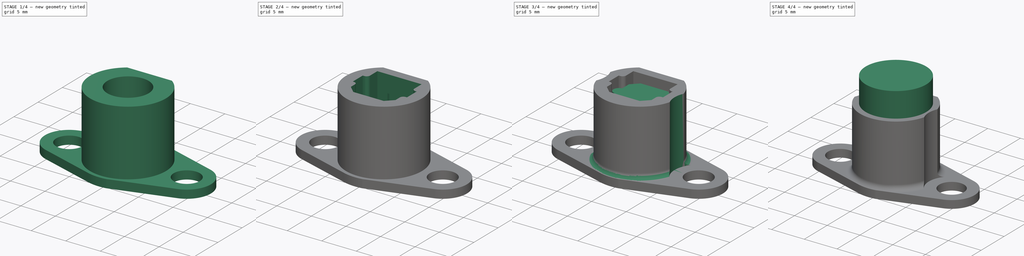
[diagram: build sequence overview — one tinted view per stage of 4, left to right]
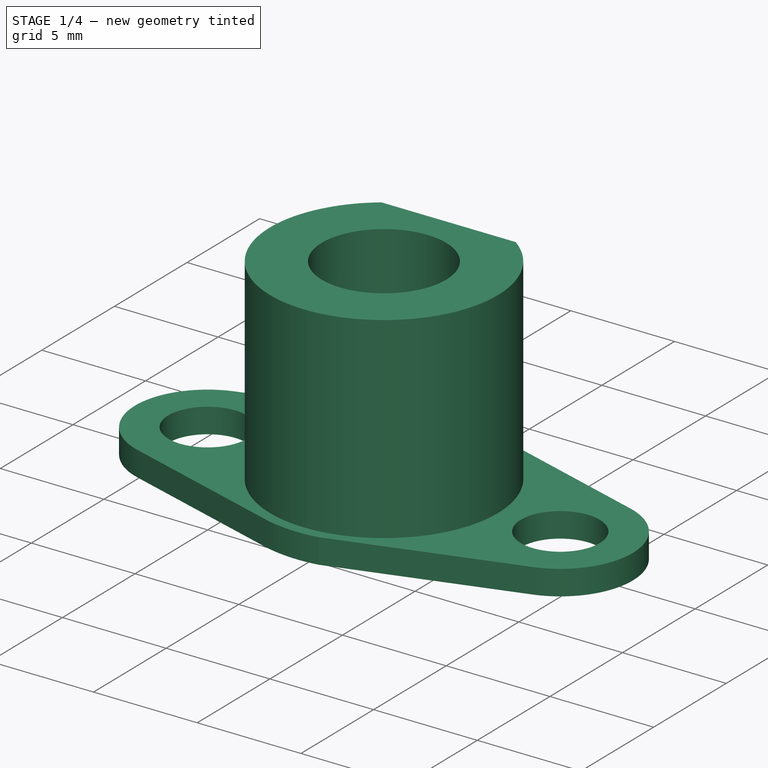
[diagram: stage 1 of 4 — iso view after this stage's code; geometry added in this stage tinted green]
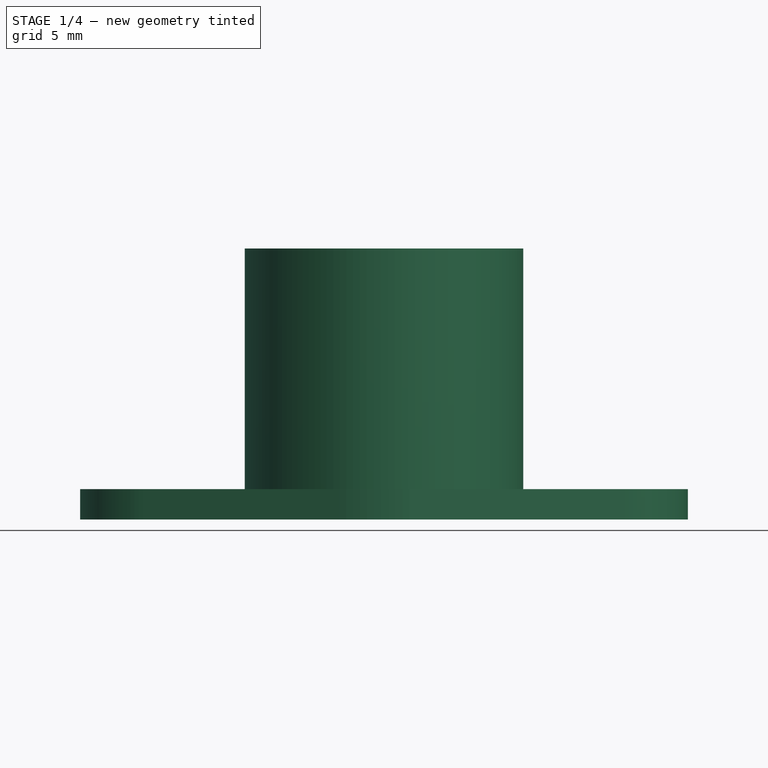
[diagram: stage 1 of 4 — front view after this stage's code; geometry added in this stage tinted green]
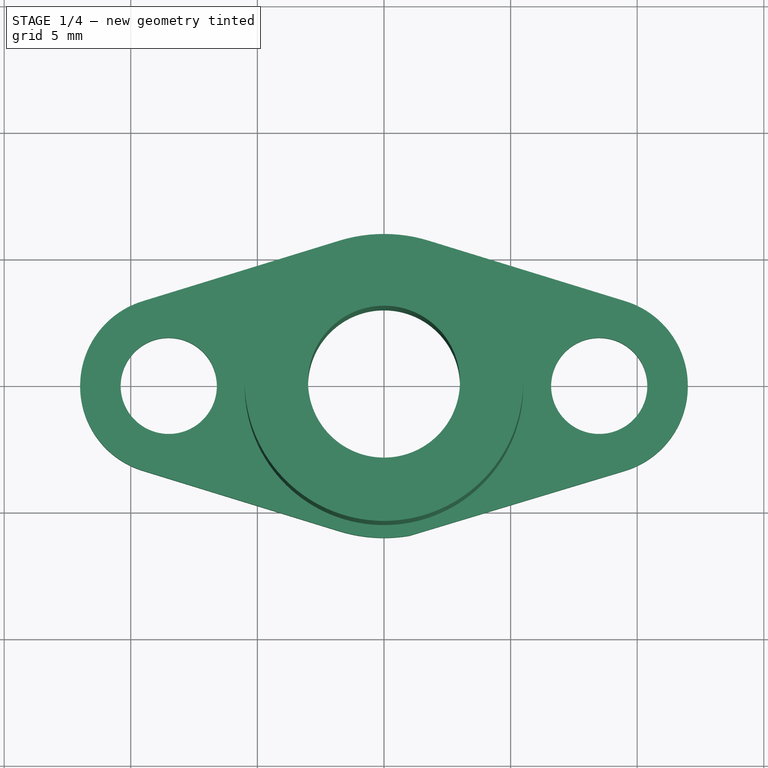
[diagram: stage 1 of 4 — top view after this stage's code; geometry added in this stage tinted green]
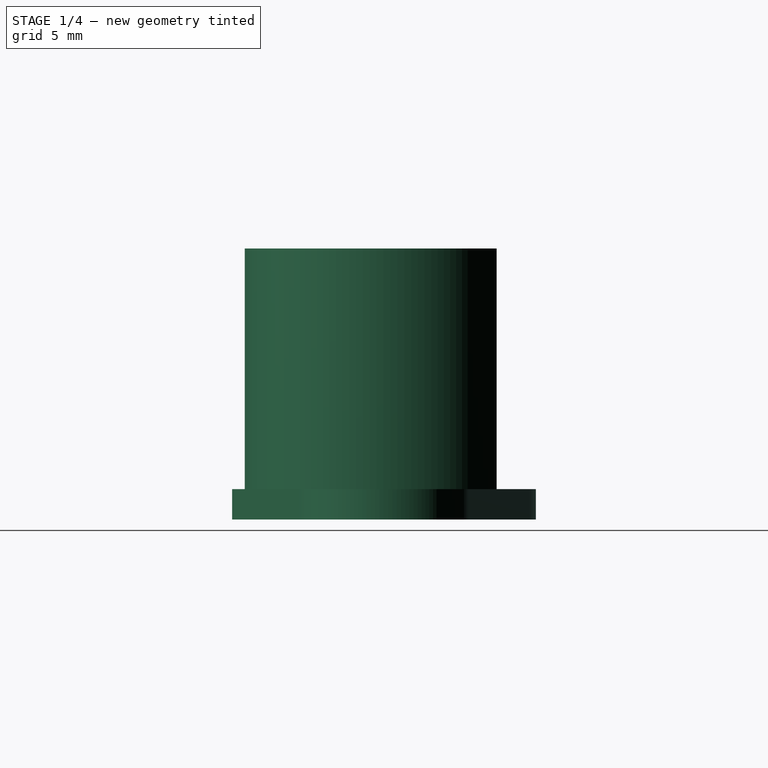
[diagram: stage 1 of 4 — right view after this stage's code; geometry added in this stage tinted green]
FCSTD DOCUMENT  (FreeCAD 0.18.4R)
Label: toslink_launcher
License: All rights reserved
LicenseURL: http://en.wikipedia.org/wiki/All_rights_reserved
objects: Sketcher::SketchObject×9, PartDesign::Pad×5, PartDesign::Pocket×4, PartDesign::Body×2, Spreadsheet::Sheet×1, PartDesign::Fillet×1, App::Part×1
note: 30 computed .brp shape members not serialized (recipe doc carries the construction recipe); baked Part::Feature solids carry a one-line shape summary decoded from their .brp

FEATURE [PartDesign::Body] Body  label="TOSLink Dummy"
  Group = -> [Sketch,Pad,Sketch001,Pad001,Sketch002,Pad002]
  Origin = -> Origin001
  Placement = pos=(0,0,22) rot=(0,0,1;0rad)
  Tip = -> Pad002
FEATURE [Sketcher::SketchObject] Sketch003  label="Base plate sketch 3"
  MapMode = 5
  Support = -> [XY_Plane002]
  expr: Constraints.hole_rad = Spreadsheet.washer_d / 2
  expr: Constraints.screw_hole_rad = Spreadsheet.screw_d / 2 + Spreadsheet.fudge
  expr: Constraints[52] = 3mm
  expr: Constraints[24] = Constraints.screw_hole_rad
  expr: Constraints[6] = 17
  expr: Constraints[2] = Constraints.hole_rad
  sketch-geometry (20):
    g0: Circle [constr] CenterX=0 CenterY=0 CenterZ=0 NormalX=0 NormalY=0 NormalZ=1 AngleXU=0 Radius=6
    g1: Circle [constr] CenterX=8.5 CenterY=0 CenterZ=0 NormalX=0 NormalY=0 NormalZ=1 AngleXU=0 Radius=3.5
    g2: Circle [constr] CenterX=-8.5 CenterY=0 CenterZ=0 NormalX=0 NormalY=0 NormalZ=1 AngleXU=0 Radius=3.5
    g3: LineSegment StartX=-9.5294 StartY=3.3452 StartZ=0 EndX=-1.76471 EndY=5.73461 EndZ=0
    g4: LineSegment StartX=1.76471 StartY=5.73462 StartZ=0 EndX=9.5294 EndY=3.3452 EndZ=0
    g5: LineSegment StartX=-9.5294 StartY=-3.3452 StartZ=0 EndX=-1.76471 EndY=-5.73462 EndZ=0
    g6: LineSegment StartX=9.5101 StartY=-3.35107 StartZ=0 EndX=1.0015 EndY=-5.91583 EndZ=0
    g7: ArcOfCircle CenterX=-8.5 CenterY=0 CenterZ=0 NormalX=0 NormalY=0 NormalZ=1 AngleXU=0 Radius=3.5 StartAngle=1.86932 EndAngle=4.41386
    g8: Circle CenterX=-8.5 CenterY=0 CenterZ=0 NormalX=0 NormalY=0 NormalZ=1 AngleXU=0 Radius=1.9
    g9: Circle CenterX=8.5 CenterY=0 CenterZ=0 NormalX=0 NormalY=0 NormalZ=1 AngleXU=0 Radius=1.9
    g10: LineSegment [constr] StartX=-3 StartY=3 StartZ=0 EndX=3 EndY=3 EndZ=0
    g11: LineSegment [constr] StartX=3 StartY=3 StartZ=0 EndX=3 EndY=-3 EndZ=0
    g12: LineSegment [constr] StartX=3 StartY=-3 StartZ=0 EndX=-3 EndY=-3 EndZ=0
    g13: LineSegment [constr] StartX=-3 StartY=-3 StartZ=0 EndX=-3 EndY=3 EndZ=0
    g14: ArcOfCircle [constr] CenterX=0 CenterY=0 CenterZ=0 NormalX=0 NormalY=0 NormalZ=1 AngleXU=0 Radius=6 StartAngle=1.40335 EndAngle=1.86933
    g15: ArcOfCircle CenterX=0 CenterY=0 CenterZ=0 NormalX=0 NormalY=0 NormalZ=1 AngleXU=0 Radius=6 StartAngle=1.27226 EndAngle=1.86933
    g16: ArcOfCircle CenterX=0 CenterY=0 CenterZ=0 NormalX=0 NormalY=0 NormalZ=1 AngleXU=0 Radius=6 StartAngle=4.41386 EndAngle=4.88009
    g17: ArcOfCircle CenterX=8.5 CenterY=0 CenterZ=0 NormalX=0 NormalY=0 NormalZ=1 AngleXU=0 Radius=3.5 StartAngle=5.00515 EndAngle=7.55545
    g18: LineSegment [constr] StartX=-3.66186 StartY=5.15081 StartZ=0 EndX=-3 EndY=3 EndZ=0
    g19: Circle CenterX=0 CenterY=0 CenterZ=0 NormalX=0 NormalY=0 NormalZ=1 AngleXU=0 Radius=3
  constraints (53):
    c: Coincident(g0,g-1)
    c: Radius(g0) = 6  'body_rad'
    c: Radius(g1) = 3.5
    c: Radius(g2) = 3.5  'hole_rad'
    c: PointOnObject(g2,g-1)
    c: Symmetric(g2,g1,g-1)
    c: Distance(g2,g1) = 17
    c: PointOnObject(g3,g2)
    c: PointOnObject(g3,g0)
    c: Tangent(g3,g0)
    c: Tangent(g2,g3)
    c: Tangent(g4,g1)
    c: PointOnObject(g5,g0)
    c: Tangent(g5,g0)
    c: PointOnObject(g6,g1)
    c: Tangent(g6,g1)
    c: Tangent(g4,g0)
    c: Tangent(g2,g5)
    c: Coincident(g7,g2)
    c: Coincident(g7,g3)
    c: Coincident(g7,g5)
    c: Coincident(g8,g7)
    c: Radius(g8) = 1.9  'screw_hole_rad'
    c: Coincident(g9,g1)
    c: Radius(g9) = 1.9
    c: Coincident(g10,g11)
    c: Coincident(g11,g12)
    c: Coincident(g12,g13)
    c: Coincident(g13,g10)
    c: Horizontal(g10)
    c: Horizontal(g12)
    c: Vertical(g11)
    c: Vertical(g13)
    c: Symmetric(g11,g10,g-1)
    c: Distance(g13) = 6
    c: Distance(g12) = 6
    c: Coincident(g14,g-1)
    c: Coincident(g14,g3)
    c: Coincident(g15,g-1)
    c: Coincident(g15,g3)
    c: Coincident(g15,g4)
    c: Coincident(g16,g15)
    c: Coincident(g16,g5)
    c: Coincident(g16,g6)
    c: Coincident(g17,g9)
    c: Coincident(g17,g4)
    c: Coincident(g17,g6)
    c: PointOnObject(g18,g3)
    c: Coincident(g18,g10)
    c: Angle(g3,g18) = 1.5708
    c: Distance(g18) = 2.25034
    c: Coincident(g19,g15)
    c: Radius(g19) = 3
FEATURE [PartDesign::Pad] Pad003  label="Base plate"
  Length = 1.2
  Length2 = 100
  Profile = -> Sketch003
  Type = 0
  expr: Length = Spreadsheet.base_thickness
FEATURE [Sketcher::SketchObject] Sketch004  label="Upright body 4"
  ExternalGeometry = -> [Sketch003]
  MapMode = 5
  Placement = pos=(0,0,1.2) rot=(0,0,1;0rad)
  Support = -> [Pad003]
  sketch-geometry (14):
    g0: Circle [constr] CenterX=0 CenterY=0 CenterZ=0 NormalX=0 NormalY=0 NormalZ=1 AngleXU=0 Radius=5.5
    g1: LineSegment [constr] StartX=3.23282 StartY=4.44959 StartZ=0 EndX=-3.23282 EndY=4.44959 EndZ=0
    g2: LineSegment [constr] StartX=0 StartY=0 StartZ=0 EndX=3.23282 EndY=4.44959 EndZ=0
    g3: LineSegment [constr] StartX=0 StartY=0 StartZ=0 EndX=-3.23282 EndY=4.44959 EndZ=0
    g4: LineSegment [constr] StartX=-3 StartY=3 StartZ=0 EndX=3 EndY=3 EndZ=0
    g5: LineSegment [constr] StartX=3 StartY=3 StartZ=0 EndX=3 EndY=-3 EndZ=0
    g6: LineSegment [constr] StartX=3 StartY=-3 StartZ=0 EndX=-3 EndY=-3 EndZ=0
    g7: LineSegment [constr] StartX=-3 StartY=-3 StartZ=0 EndX=-3 EndY=3 EndZ=0
    g8: Circle [constr] CenterX=8.5 CenterY=0 CenterZ=0 NormalX=0 NormalY=0 NormalZ=1 AngleXU=0 Radius=3.5
    g9: ArcOfCircle [constr] CenterX=0 CenterY=0 CenterZ=0 NormalX=0 NormalY=0 NormalZ=1 AngleXU=0 Radius=5.5 StartAngle=2.19911 EndAngle=7.29024
    g10: ArcOfCircle CenterX=0 CenterY=0 CenterZ=0 NormalX=0 NormalY=0 NormalZ=1 AngleXU=0 Radius=5.5 StartAngle=2.19911 EndAngle=7.22566
    g11: LineSegment StartX=3.23282 StartY=4.44959 StartZ=0 EndX=-3.23282 EndY=4.44959 EndZ=0
    g12: Circle CenterX=0 CenterY=0 CenterZ=0 NormalX=0 NormalY=0 NormalZ=1 AngleXU=0 Radius=3
    g13: GeomPoint X=-0.786716 Y=-2.89501 Z=0
  constraints (33):
    c: Coincident(g0,g-1)
    c: Radius(g0) = 5.5
    c: PointOnObject(g1,g0)
    c: Coincident(g2,g-1)
    c: Coincident(g2,g1)
    c: Coincident(g3,g-1)
    c: Coincident(g3,g1)
    c: Angle(g2,g3) = 1.25664
    c: DistanceY(g1,g-1) = -4.44959
    c: Coincident(g4,g5)
    c: Coincident(g5,g6)
    c: Coincident(g6,g7)
    c: Coincident(g7,g4)
    c: Horizontal(g4)
    c: Horizontal(g6)
    c: Vertical(g5)
    c: Vertical(g7)
    c: Symmetric(g4,g5,g-1)
    c: Distance(g7) = 6
    c: Distance(g6) = 6
    c: Horizontal(g1)
    c: Coincident(g8,g-3)
    c: Radius(g8) = 3.5
    c: Coincident(g9,g-1)
    c: Coincident(g9,g1)
    c: Coincident(g10,g-1)
    c: Coincident(g10,g1)
    c: Coincident(g10,g1)
    c: Coincident(g11,g10)
    c: Coincident(g11,g10)
    c: Coincident(g12,g10)
    c: PointOnObject(g13,g-4)
    c: PointOnObject(g13,g12)
FEATURE [PartDesign::Pad] Pad004  label="Upright"
  BaseFeature = -> Pad003
  Length = 9.5
  Length2 = 100
  Profile = -> Sketch004
  Type = 0
  expr: Length = Spreadsheet.upright_h
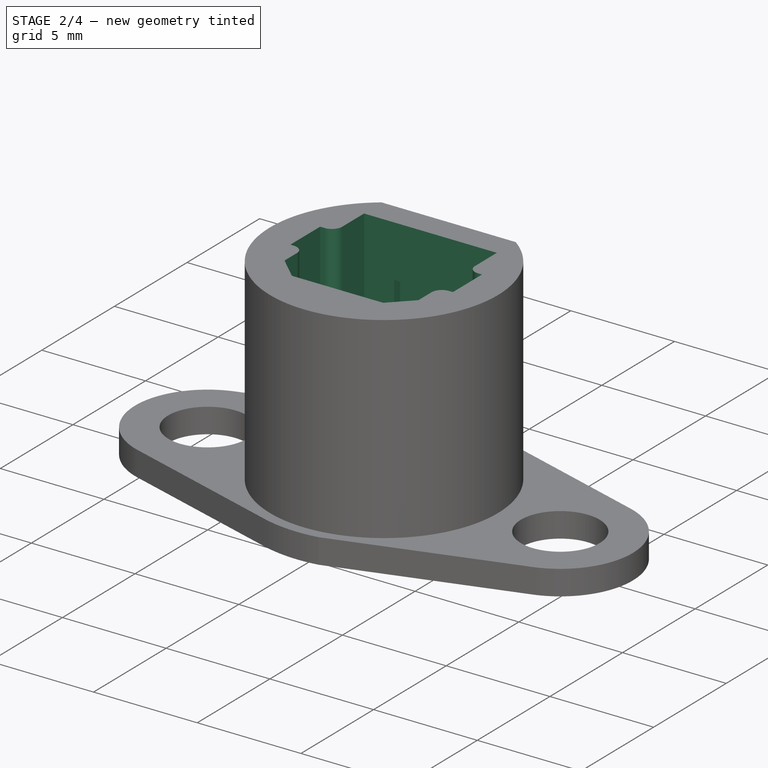
[diagram: stage 2 of 4 — iso view after this stage's code; geometry added in this stage tinted green]
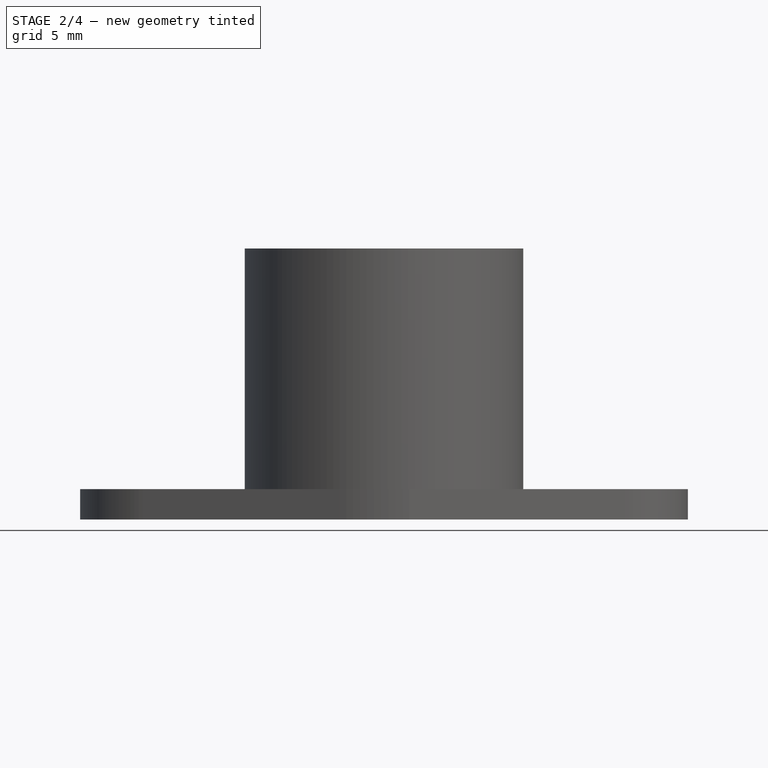
[diagram: stage 2 of 4 — front view after this stage's code; geometry added in this stage tinted green]
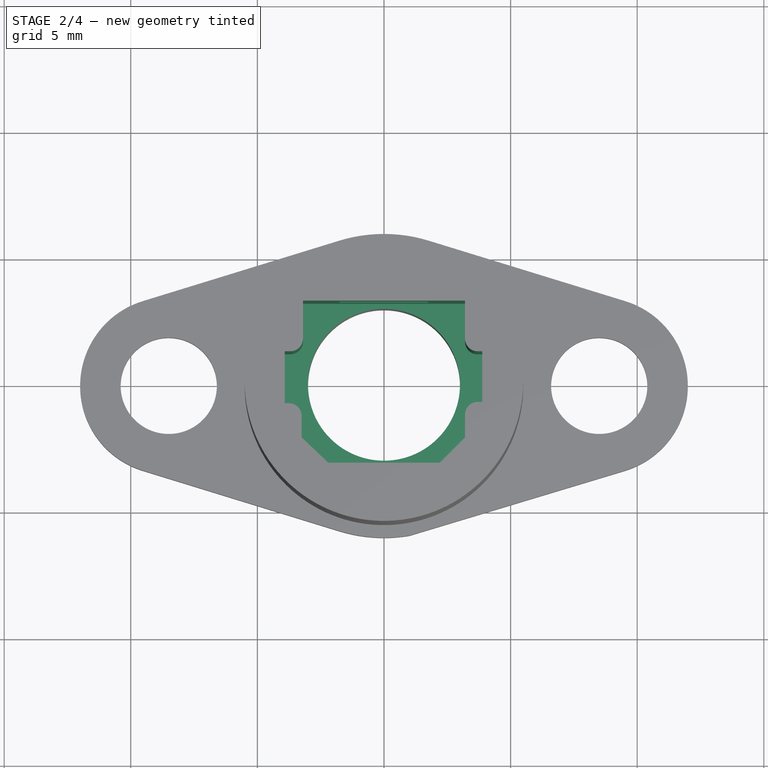
[diagram: stage 2 of 4 — top view after this stage's code; geometry added in this stage tinted green]
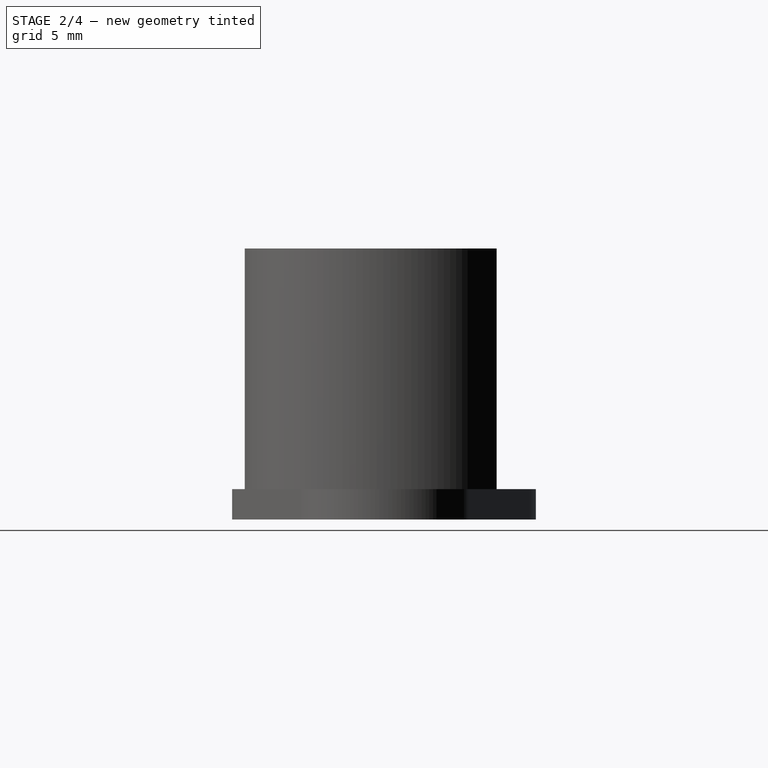
[diagram: stage 2 of 4 — right view after this stage's code; geometry added in this stage tinted green]
FEATURE [Sketcher::SketchObject] Sketch005  label="Toslink cutout 5"
  AttachmentOffset = pos=(0,0,0) rot=(0,0,1;3.14159rad)
  MapMode = 5
  Placement = pos=(0,0,10.7) rot=(0,0,1;3.14159rad)
  Support = -> [Pad004]
  expr: Constraints[43] = 2mm
  expr: Constraints[13] = 7.4mm + 2 * Spreadsheet.fudge
  expr: Constraints[27] = Constraints.filet_rad
  expr: Constraints[41] = Constraints.filet_rad
  expr: Constraints.vheight = 6mm + 2 * Spreadsheet.fudge
  expr: Constraints[2] = 4mm + 2 * Spreadsheet.fudge
  expr: Constraints.hwidth = 6mm + 2 * Spreadsheet.fudge
  expr: Constraints[8] = Constraints.vheight / 2
  expr: Constraints[40] = Constraints.filet_rad
  sketch-geometry (23):
    g0: LineSegment StartX=3.2 StartY=-3.2 StartZ=0 EndX=-3.2 EndY=-3.2 EndZ=0
    g1: LineSegment StartX=-3.2 StartY=2.2 StartZ=0 EndX=-2.2 EndY=3.2 EndZ=0
    g2: LineSegment StartX=-2.2 StartY=3.2 StartZ=0 EndX=2.2 EndY=3.2 EndZ=0
    g3: LineSegment StartX=2.2 StartY=3.2 StartZ=0 EndX=3.25416 EndY=2.2 EndZ=0
    g4: GeomPoint X=-3.25 Y=-0.325 Z=0
    g5: LineSegment StartX=3.91712 StartY=-1.2 StartZ=0 EndX=3.91712 EndY=0.85 EndZ=0
    g6: LineSegment StartX=-3.88288 StartY=0.8 StartZ=0 EndX=-3.88288 EndY=-1.2 EndZ=0
    g7: GeomPoint X=-3.25 Y=-3.25 Z=0
    g8: LineSegment StartX=-3.2 StartY=-3.2 StartZ=0 EndX=-3.2 EndY=-1.7 EndZ=0
    g9: LineSegment StartX=-3.88288 StartY=-1.2 StartZ=0 EndX=-3.7 EndY=-1.2 EndZ=0
    g10: ArcOfCircle CenterX=-3.7 CenterY=-1.7 CenterZ=0 NormalX=0 NormalY=0 NormalZ=1 AngleXU=0 Radius=0.5 StartAngle=1e-16 EndAngle=1.5708
    g11: LineSegment StartX=3.2 StartY=-3.2 StartZ=0 EndX=3.2 EndY=-1.7 EndZ=0
    g12: LineSegment StartX=3.91712 StartY=-1.2 StartZ=0 EndX=3.7 EndY=-1.2 EndZ=0
    g13: ArcOfCircle CenterX=3.7 CenterY=-1.7 CenterZ=0 NormalX=0 NormalY=0 NormalZ=1 AngleXU=0 Radius=0.5 StartAngle=1.5708 EndAngle=3.14159
    g14: LineSegment StartX=-3.88288 StartY=0.8 StartZ=0 EndX=-3.7 EndY=0.8 EndZ=0
    g15: LineSegment StartX=-3.2 StartY=2.2 StartZ=0 EndX=-3.2 EndY=1.3 EndZ=0
    g16: LineSegment StartX=3.25416 StartY=2.2 StartZ=0 EndX=3.25416 EndY=1.35 EndZ=0
    g17: LineSegment StartX=3.91712 StartY=0.85 StartZ=0 EndX=3.75416 EndY=0.85 EndZ=0
    g18: ArcOfCircle CenterX=3.75416 CenterY=1.35 CenterZ=0 NormalX=0 NormalY=0 NormalZ=1 AngleXU=0 Radius=0.5 StartAngle=3.14159 EndAngle=4.71239
    g19: ArcOfCircle CenterX=-3.7 CenterY=1.3 CenterZ=0 NormalX=0 NormalY=0 NormalZ=1 AngleXU=0 Radius=0.5 StartAngle=4.71239 EndAngle=6.28319
    g20: GeomPoint X=2.95176 Y=-2.95456 Z=0
    g21: GeomPoint X=2.99528 Y=1.99747 Z=0
    g22: GeomPoint X=3.25416 Y=1.97974 Z=0
  constraints (49):
    c: Coincident(g2,g3)
    c: Coincident(g1,g2)
    c: Distance(g2) = 4.4
    c: Distance(g0) = 6.4  'hwidth'
    c: Symmetric(g0,g0,g-2)
    c: Symmetric(g1,g2,g-2)
    c: Horizontal(g1,g3)
    c: DistanceY(g0,g1) = 6.4  'vheight'
    c: DistanceY(g0,g-1) = 3.2
    c: DistanceX(g1,g1) = 1
    c: DistanceY(g1,g1) = 1
    c: Vertical(g5)
    c: Vertical(g6)
    c: Distance(g6,g5) = 7.8
    c: Coincident(g8,g0)
    c: Vertical(g8)
    c: Coincident(g9,g6)
    c: Horizontal(g9)
    c: Tangent(g9,g10) = 1.5708
    c: Tangent(g8,g10) = -1.5708
    c: Radius(g10) = 0.5  'filet_rad'
    c: Coincident(g11,g0)
    c: Vertical(g11)
    c: Coincident(g12,g5)
    c: Horizontal(g12)
    c: Tangent(g12,g13) = -1.5708
    c: Tangent(g11,g13) = 1.5708
    c: Radius(g13) = 0.5
    c: Coincident(g14,g6)
    c: Coincident(g15,g1)
    c: Vertical(g15)
    c: Coincident(g16,g3)
    c: Coincident(g17,g5)
    c: Vertical(g16)
    c: Horizontal(g17)
    c: Tangent(g17,g18) = 1.5708
    c: Tangent(g16,g18) = -1.5708
    c: Tangent(g14,g19) = -1.5708
    c: Tangent(g15,g19) = 1.5708
    c: Horizontal(g14)
    c: Radius(g19) = 0.5
    c: Radius(g18) = 0.5
    c: Horizontal(g6,g5)
    c: DistanceY(g0,g6) = 2
    c: DistanceY(g6,g1) = 1.4
    c: DistanceX(g20,g0) = 0.248241
    c: DistanceY(g0,g20) = 0.245443
    c: PointOnObject(g22,g16)
    c: DistanceX(g21,g22) = 0.258878
FEATURE [Sketcher::SketchObject] Sketch006  label="washer boss sketch 6"
  ExternalGeometry = -> [Sketch003]
  MapMode = 5
  Placement = pos=(0,0,1.2) rot=(0,0,1;0rad)
  expr: Constraints.washer_rad = Spreadsheet.washer_d / 2
  expr: Constraints[3] = Constraints.washer_rad
  sketch-geometry (2):
    g0: Circle CenterX=-8.5 CenterY=0 CenterZ=0 NormalX=0 NormalY=0 NormalZ=1 AngleXU=0 Radius=3.5
    g1: Circle CenterX=8.5 CenterY=0 CenterZ=0 NormalX=0 NormalY=0 NormalZ=1 AngleXU=0 Radius=3.5
  constraints (4):
    c: Coincident(g0,g-3)
    c: Radius(g0) = 3.5  'washer_rad'
    c: Coincident(g1,g-4)
    c: Radius(g1) = 3.5
FEATURE [Spreadsheet::Sheet] Spreadsheet
  cells = A1=name; B1=value; C1=notes; A2=fudge; B2(fudge)==0.2mm; C2=Fudge factor for a single layer squeeze-out; A3=led_lens_h; B3(led_lens_h)==0.5mm; C3=How high the LED lens is off the XY plane; A4=flat_to_lens; B4(flat_to_lens)==10mm; C4=Distance from connector flat to end of fiber; A5=base_thickness; B5(base_thickness)==1.2mm; C5=How thick to make the base plate; A6=lens_gap; B6(lens_gap)==0.2mm; C6=How far to put the lens from the LED; A7=upright_h; B7(upright_h)==flat_to_lens + lens_gap + led_lens_h - base_thickness; C7=Computed from above; A8=socket_d; B8(socket_d)==7mm; C8=Socket depth (a little long, to avoid bottoming out); A9=notch_inset; B9(notch_inset)==2.5mm; C9=How far into the socket to put the notches; A10=notch_depth; B10(notch_depth)==0.4mm; C10=How deep to make the notches; A11=screw_d; B11(screw_d)==3.4mm; C11=Diameter of screw holes; A12=washer_d; B12(washer_d)==7mm; C12=Diameter of washer flats
FEATURE [PartDesign::Pocket] Pocket  label="Socket"
  BaseFeature = -> Pad004
  Length = 7
  Length2 = 100
  Profile = -> Sketch005
  Type = 0
  expr: Length = Spreadsheet.socket_d
FEATURE [Sketcher::SketchObject] Sketch007  label="Retaining notch 7"
  ExternalGeometry = -> [Pocket]
  MapMode = 5
  Placement = pos=(-4e-16,-3.2,0) rot=(0,0.707107,0.707107;3.14159rad)
  Support = -> [Pocket]
  expr: Constraints[10] = Spreadsheet.notch_inset + 2mm
  expr: Constraints[9] = Spreadsheet.notch_inset
  sketch-geometry (4):
    g0: LineSegment StartX=1.75 StartY=8.2 StartZ=0 EndX=-1.75 EndY=8.2 EndZ=0
    g1: LineSegment StartX=-1.75 StartY=8.2 StartZ=0 EndX=-1.75 EndY=6.2 EndZ=0
    g2: LineSegment StartX=-1.75 StartY=6.2 StartZ=0 EndX=1.75 EndY=6.2 EndZ=0
    g3: LineSegment StartX=1.75 StartY=6.2 StartZ=0 EndX=1.75 EndY=8.2 EndZ=0
  constraints (11):
    c: Coincident(g0,g1)
    c: Coincident(g1,g2)
    c: Coincident(g2,g3)
    c: Coincident(g3,g0)
    c: Horizontal(g2)
    c: Vertical(g1)
    c: Vertical(g3)
    c: Symmetric(g0,g0,g-2)
    c: Distance(g0) = 3.5
    c: DistanceY(g0,g-3) = 2.5
    c: DistanceY(g1,g-3) = 4.5
FEATURE [PartDesign::Pocket] Pocket001  label="Retaining notch top"
  BaseFeature = -> Pocket
  Length = 0.4
  Length2 = 100
  Profile = -> Sketch007
  Type = 0
  expr: Length = Spreadsheet.notch_depth
FEATURE [Sketcher::SketchObject] Sketch008  label="Retaining notch 8"
  ExternalGeometry = -> [Sketch007]
  MapMode = 5
  Placement = pos=(4e-16,3.2,0) rot=(1,0,0;1.5708rad)
  Support = -> [Pocket001]
  sketch-geometry (4):
    g0: LineSegment StartX=-1.75 StartY=8.2 StartZ=0 EndX=1.75 EndY=8.2 EndZ=0
    g1: LineSegment StartX=1.75 StartY=8.2 StartZ=0 EndX=1.75 EndY=6.2 EndZ=0
    g2: LineSegment StartX=1.75 StartY=6.2 StartZ=0 EndX=-1.75 EndY=6.2 EndZ=0
    g3: LineSegment StartX=-1.75 StartY=6.2 StartZ=0 EndX=-1.75 EndY=8.2 EndZ=0
  constraints (10):
    c: Coincident(g0,g1)
    c: Coincident(g1,g2)
    c: Coincident(g2,g3)
    c: Coincident(g3,g0)
    c: Horizontal(g0)
    c: Horizontal(g2)
    c: Vertical(g1)
    c: Vertical(g3)
    c: Coincident(g0,g-3)
    c: Coincident(g1,g-4)
FEATURE [PartDesign::Pocket] Pocket002  label="Retaining notch bottom"
  BaseFeature = -> Pocket001
  Length = 0.4
  Length2 = 100
  Profile = -> Sketch008
  Type = 0
  expr: Length = Spreadsheet.notch_depth
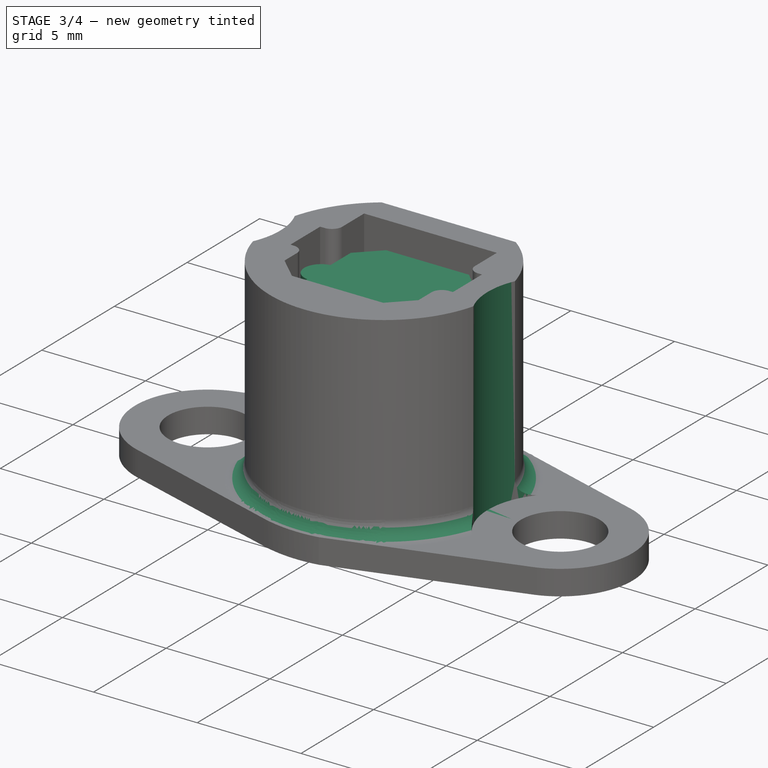
[diagram: stage 3 of 4 — iso view after this stage's code; geometry added in this stage tinted green]
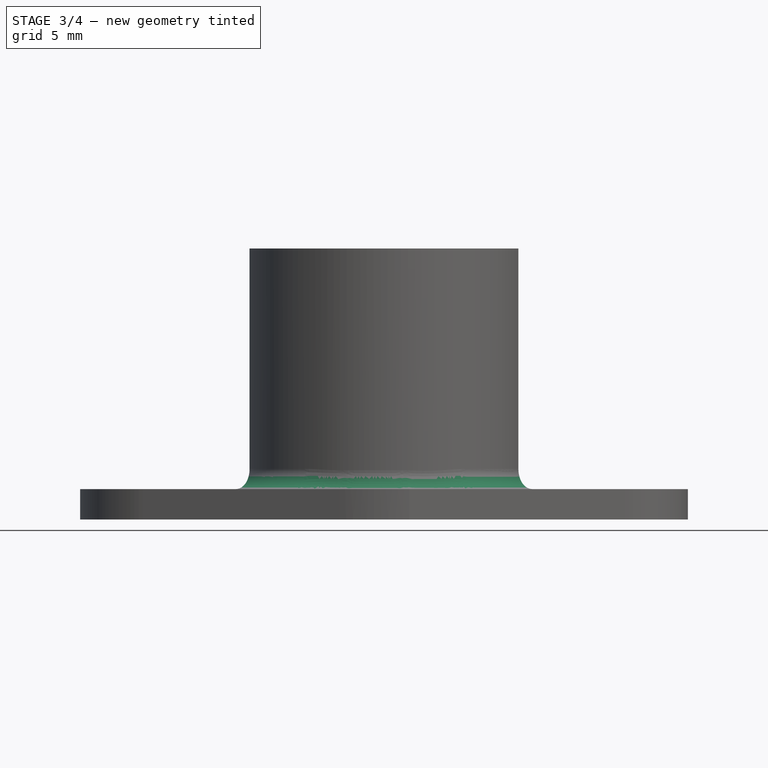
[diagram: stage 3 of 4 — front view after this stage's code; geometry added in this stage tinted green]
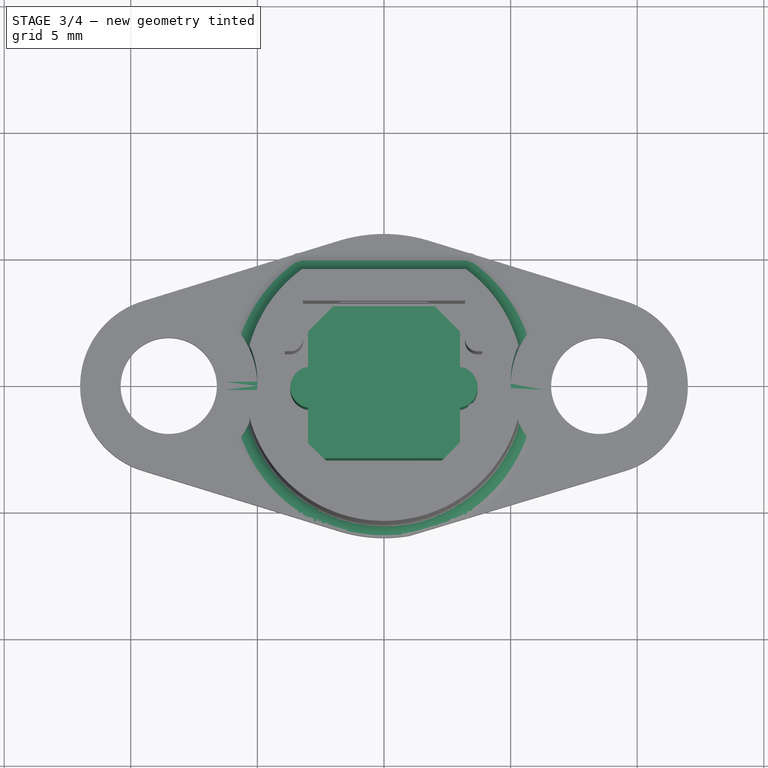
[diagram: stage 3 of 4 — top view after this stage's code; geometry added in this stage tinted green]
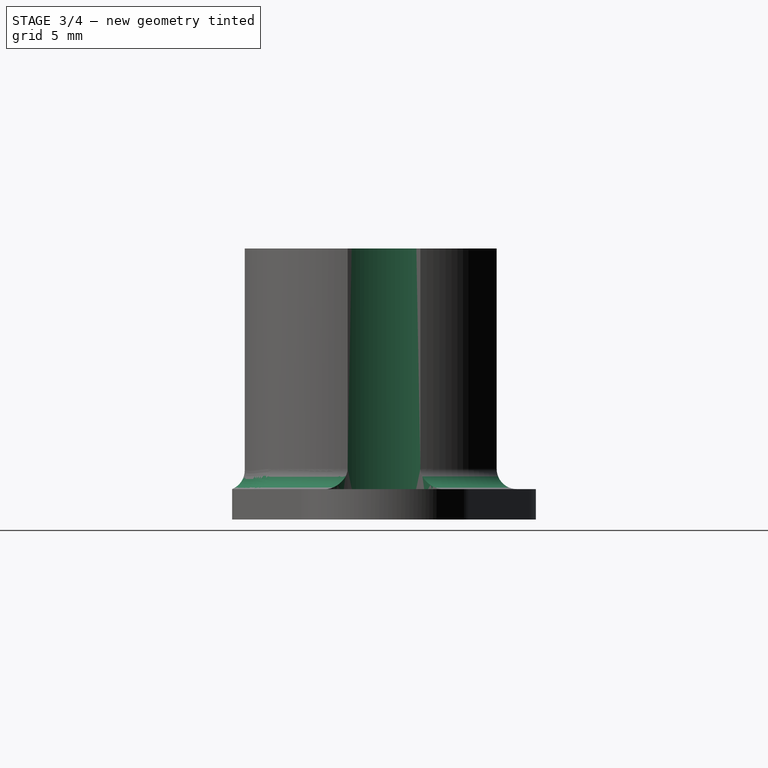
[diagram: stage 3 of 4 — right view after this stage's code; geometry added in this stage tinted green]
FEATURE [Sketcher::SketchObject] Sketch
  AttachmentOffset = pos=(0,0,3) rot=(0,0,1;0rad)
  MapMode = 5
  Placement = pos=(0,0,3) rot=(0,0,1;0rad)
  Support = -> [XY_Plane001]
  sketch-geometry (13):
    g0: LineSegment StartX=-3 StartY=-1 StartZ=0 EndX=-3 EndY=-3 EndZ=0
    g1: LineSegment StartX=-3 StartY=-3 StartZ=0 EndX=3 EndY=-3 EndZ=0
    g2: LineSegment StartX=3 StartY=-3 StartZ=0 EndX=3 EndY=-1 EndZ=0
    g3: LineSegment StartX=-2 StartY=3 StartZ=0 EndX=2 EndY=3 EndZ=0
    g4: LineSegment StartX=2 StartY=3 StartZ=0 EndX=3 EndY=2 EndZ=0
    g5: LineSegment StartX=-2 StartY=3 StartZ=0 EndX=-3 EndY=2 EndZ=0
    g6: LineSegment StartX=-3 StartY=2 StartZ=0 EndX=-3 EndY=0.6 EndZ=0
    g7: LineSegment StartX=3 StartY=2 StartZ=0 EndX=3 EndY=0.6 EndZ=0
    g8: GeomPoint X=2 Y=-3 Z=0
    g9: GeomPoint X=-3.7 Y=-0.2 Z=0
    g10: GeomPoint X=3.7 Y=-0.2 Z=0
    g11: ArcOfCircle CenterX=-2.89286 CenterY=-0.2 CenterZ=0 NormalX=0 NormalY=0 NormalZ=1 AngleXU=0 Radius=0.807143 StartAngle=1.70393 EndAngle=4.57925
    g12: ArcOfCircle CenterX=2.89286 CenterY=-0.2 CenterZ=0 NormalX=0 NormalY=0 NormalZ=1 AngleXU=0 Radius=0.807143 StartAngle=4.84553 EndAngle=7.72085
  constraints (32):
    c: Vertical(g0)
    c: Coincident(g1,g0)
    c: Coincident(g2,g1)
    c: Vertical(g2)
    c: Coincident(g4,g3)
    c: Coincident(g5,g3)
    c: Vertical(g6)
    c: Vertical(g7)
    c: Coincident(g4,g7)
    c: Coincident(g5,g6)
    c: Vertical(g7,g2)
    c: Symmetric(g0,g1,g-2)
    c: Symmetric(g3,g3,g-2)
    c: Distance(g1) = 6
    c: Distance(g3) = 4
    c: PointOnObject(g8,g1)
    c: Symmetric(g3,g8,g-1)
    c: DistanceY(g8,g-1) = 3
    c: DistanceX(g9,g10) = 7.4
    c: Symmetric(g9,g10,g-2)
    c: Distance(g0) = 2
    c: Horizontal(g0,g2)
    c: Distance(g6) = 1.4
    c: Coincident(g11,g6)
    c: Coincident(g11,g0)
    c: PointOnObject(g9,g11)
    c: Coincident(g12,g7)
    c: Coincident(g12,g2)
    c: PointOnObject(g10,g12)
    c: Horizontal(g7,g6)
    c: Horizontal(g4,g5)
    c: DistanceY(g5,g3) = 1
FEATURE [PartDesign::Pad] Pad
  Length = 6.5
  Length2 = 100
  Profile = -> Sketch
  Type = 0
FEATURE [PartDesign::Fillet] Fillet
  Base = -> Pocket002 [Edge24,Edge25]
  BaseFeature = -> Pocket002
  Radius = 0.8
FEATURE [PartDesign::Pocket] Pocket003  label="Washer flats"
  BaseFeature = -> Fillet
  Length = 5
  Length2 = 100
  Profile = -> Sketch006
  Reversed = true
  Type = 1
FEATURE [PartDesign::Body] Body001  label="TOSLink Launcher001"
  Group = -> [Sketch003,Pad003,Sketch004,Pad004,Sketch005,Sketch006,Sketch007,Pocket,Pocket001,Sketch008,Pocket002,Fillet,Pocket003]
  Origin = -> Origin002
  Tip = -> Pocket003
FEATURE [App::Part] Part  label="TOSLink Launcher"
  Group = -> [Body,Body001]
  Origin = -> Origin
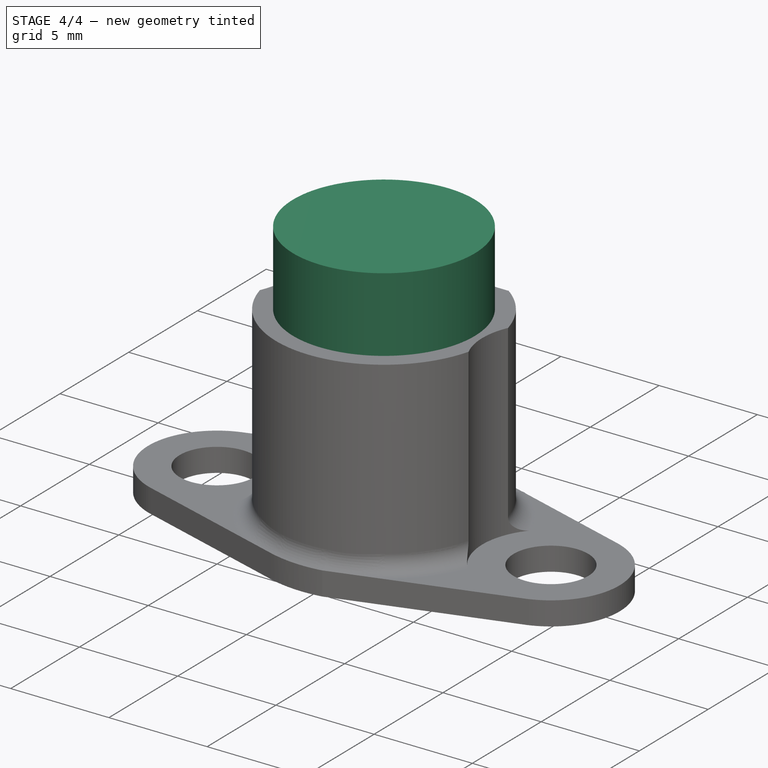
[diagram: stage 4 of 4 — iso view after this stage's code; geometry added in this stage tinted green]
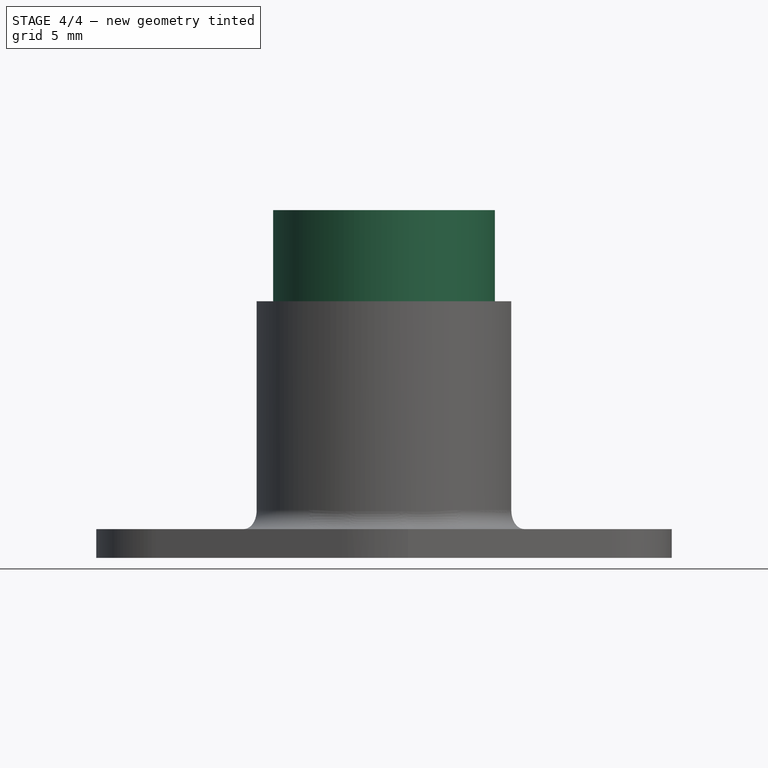
[diagram: stage 4 of 4 — front view after this stage's code; geometry added in this stage tinted green]
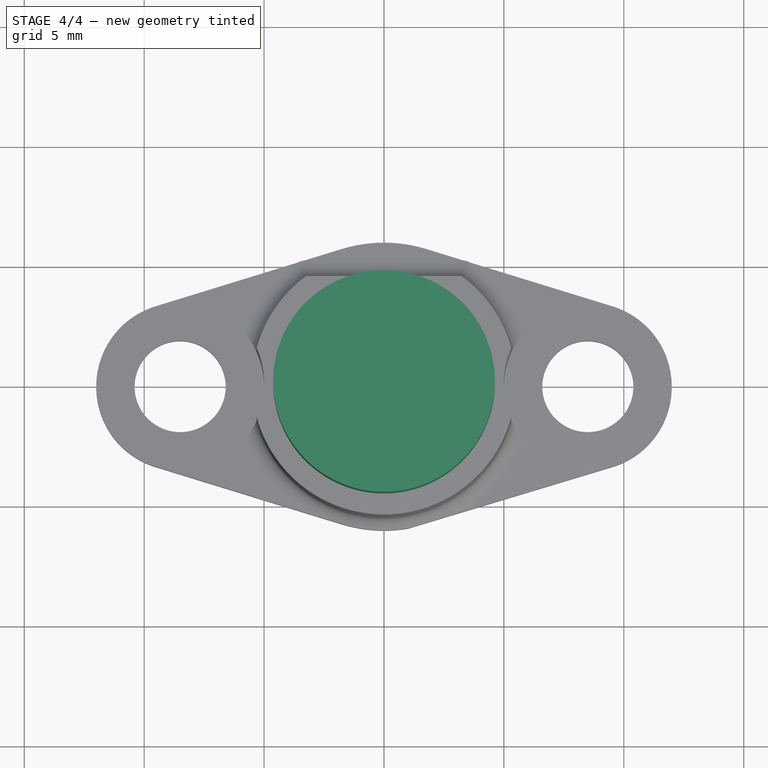
[diagram: stage 4 of 4 — top view after this stage's code; geometry added in this stage tinted green]
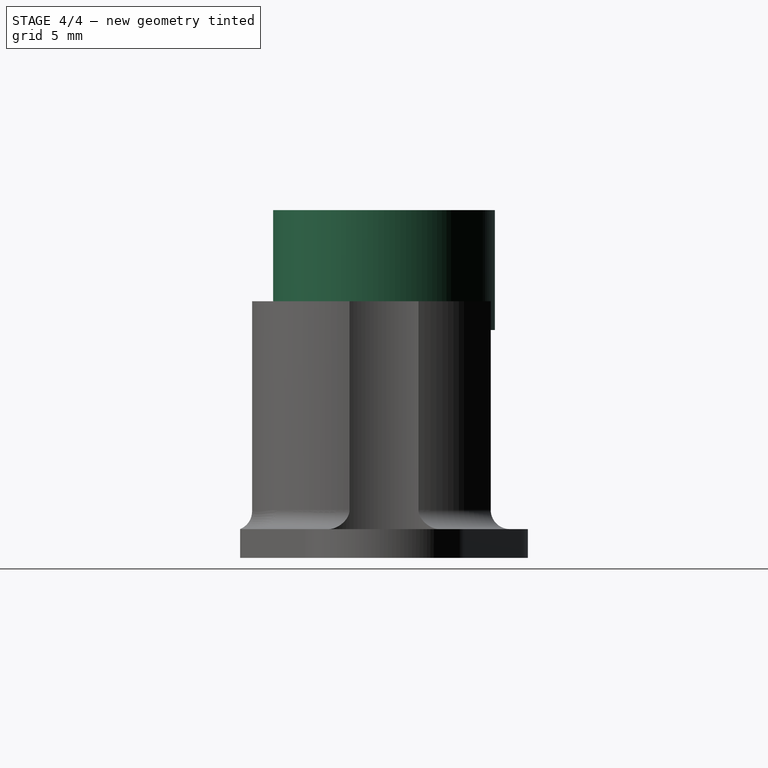
[diagram: stage 4 of 4 — right view after this stage's code; geometry added in this stage tinted green]
FEATURE [Sketcher::SketchObject] Sketch001
  MapMode = 5
  Placement = pos=(0,0,3) rot=(1,0,0;3.14159rad)
  Support = -> [Pad]
  sketch-geometry (1):
    g0: Circle CenterX=0 CenterY=0 CenterZ=0 NormalX=0 NormalY=0 NormalZ=1 AngleXU=0 Radius=1.25
  constraints (2):
    c: Coincident(g0,g-1)
    c: Radius(g0) = 1.25
FEATURE [PartDesign::Pad] Pad001
  BaseFeature = -> Pad
  Length = 3
  Length2 = 100
  Profile = -> Sketch001
  Type = 0
FEATURE [Sketcher::SketchObject] Sketch002
  MapMode = 5
  Placement = pos=(0,0,9.5) rot=(0,0,1;0rad)
  Support = -> [Pad001]
  sketch-geometry (1):
    g0: Circle CenterX=0 CenterY=0 CenterZ=0 NormalX=0 NormalY=0 NormalZ=1 AngleXU=0 Radius=4.625
  constraints (2):
    c: Coincident(g0,g-1)
    c: Radius(g0) = 4.625
FEATURE [PartDesign::Pad] Pad002
  BaseFeature = -> Pad001
  Length = 5
  Length2 = 100
  Profile = -> Sketch002
  Type = 0
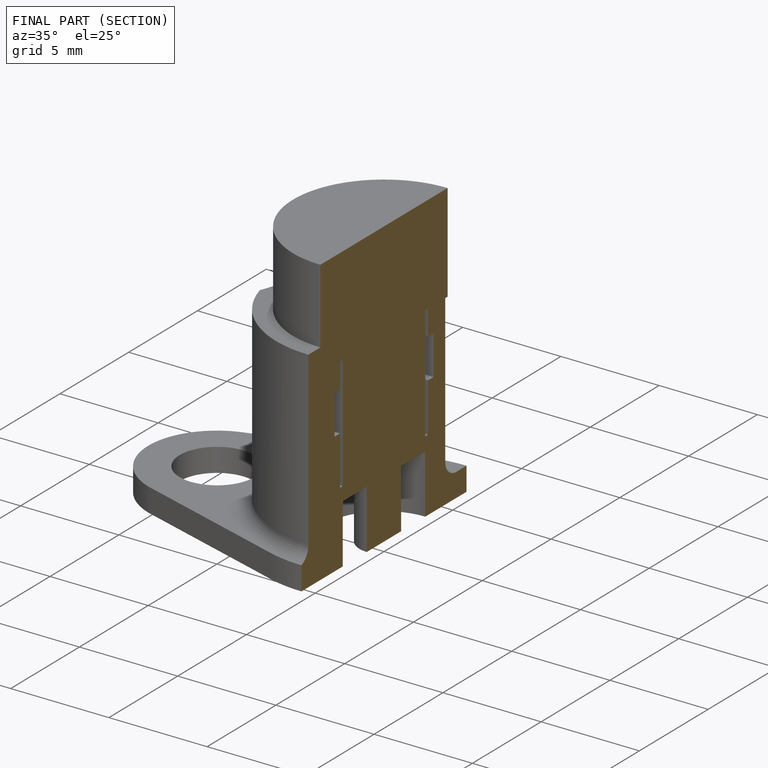
[diagram: finished part — half-section view (interior)]
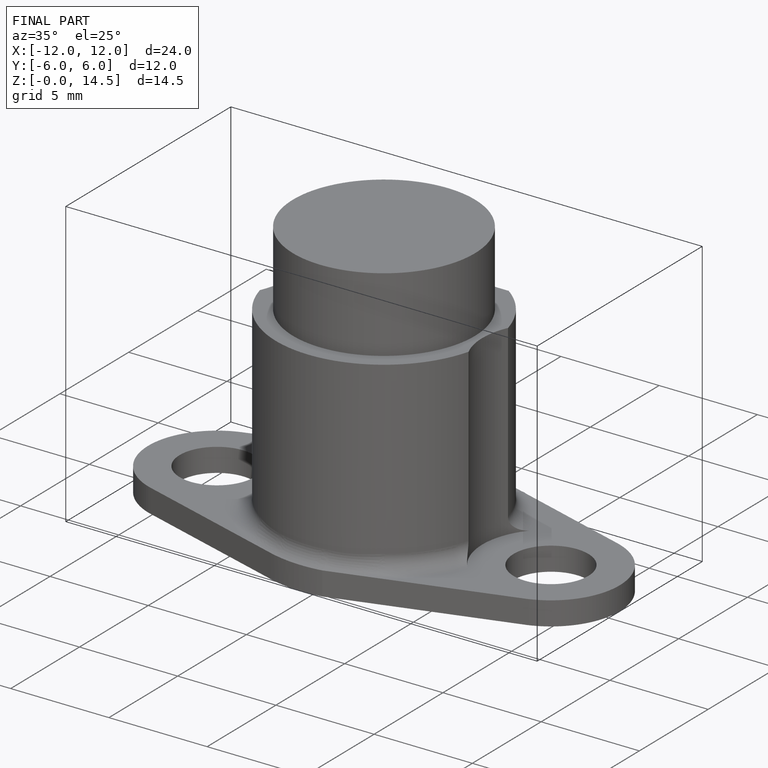
[diagram: finished part — iso view with bounding-box wireframe]
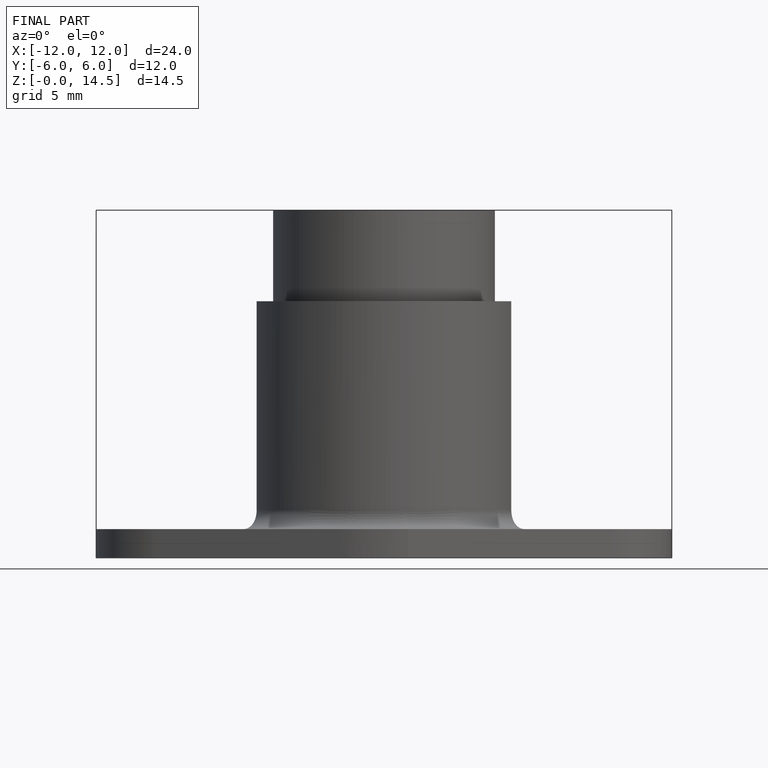
[diagram: finished part — front view with bounding-box wireframe]
